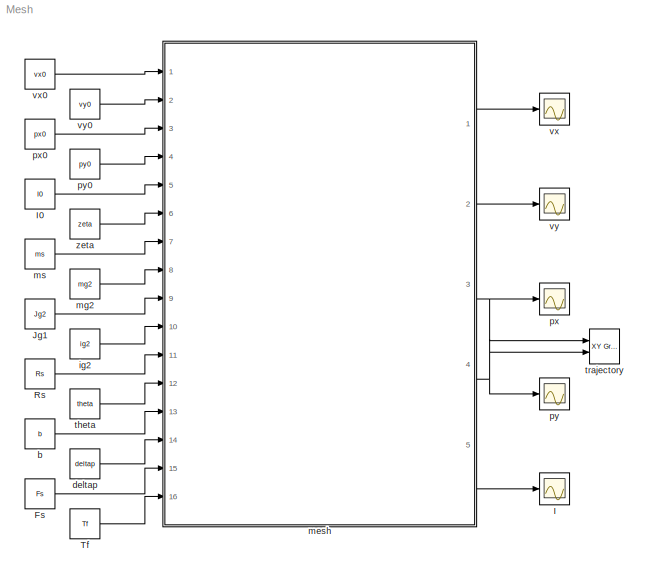
MODEL Mesh
KIND model
CONFIG PreLoadFcn = \n
BLOCK [Constant] Fs
  SID = 155
  Value = Fs
BLOCK [Scope] I
  DataFormat = StructureWithTime
  Floating = off
  LimitDataPoints = off
  NumInputPorts = 1
  Ports = [1]
  SID = 201
  SampleTime = 0
  SaveName = ScopeData4
  ShowLegends = off
  ZoomMode = yonly
BLOCK [Constant] I0
  SID = 188
  Value = I0
BLOCK [Constant] Jg1
  SID = 167
  Value = Jg2
BLOCK [Constant] Rs
  SID = 169
  Value = Rs
BLOCK [Constant] Tf
  SID = 162
  Value = Tf
BLOCK [Constant] b
  SID = 171
  Value = b
BLOCK [Constant] deltap
  SID = 172
  Value = deltap
BLOCK [Constant] ig2
  SID = 168
  Value = ig2
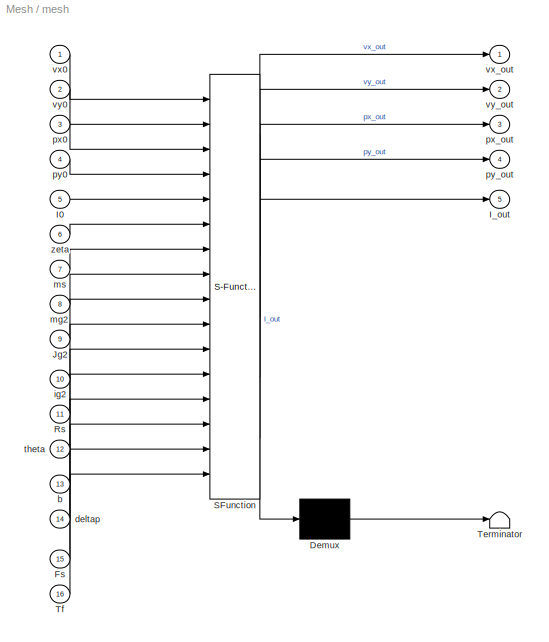
BLOCK [SubSystem] mesh
  ErrorFcn = Stateflow.Translate.translate
  FunctionWithSeparateData = off
  MaskDescription = Stateflow diagram
  MaskDisplay = plot(sf('Private','sfblk','xIcon'),sf('Private','sfblk','yIcon'));text(0.5,0,sf('Private', 'sfblk', 'tIcon'),'HorizontalAl','Center','VerticalAl','Bottom');
  MaskHideContents = off
  MaskIconFrame = off
  MaskIconOpaque = off
  MaskIconRotate = none
  MaskIconUnits = normalized
  MaskPortRotate = default
  MaskSelfModifiable = on
  MaskType = Stateflow
  MinAlgLoopOccurrences = off
  Opaque = off
  PermitHierarchicalResolution = ExplicitOnly
  Ports = [16, 5]
  PropExecContextOutsideSubsystem = off
  RTWSystemCode = Auto
  RequestExecContextInheritance = off
  SFBlockType = Chart
  SID = 176
  TreatAsAtomicUnit = on
BLOCK [Demux] mesh/ Demux 
  Outputs = 1
  Ports = [1, 1]
  SID = 176::26
BLOCK [S-Function] mesh/ SFunction 
  EnableBusSupport = on
  FunctionName = sf_sfun
  PortCounts = [16 6]
  Ports = [16, 6]
  SID = 176::25
  Tag = Stateflow S-Function Mesh 1
BLOCK [Terminator] mesh/ Terminator 
  SID = 176::28
BLOCK [Inport] mesh/Fs
  IconDisplay = Port number
  Port = 15
  SID = 176::41
BLOCK [Inport] mesh/I0
  IconDisplay = Port number
  Port = 5
  SID = 176::68
BLOCK [Outport] mesh/I_out
  IconDisplay = Port number
  Port = 5
  SID = 176::63
BLOCK [Inport] mesh/Jg2
  IconDisplay = Port number
  Port = 9
  SID = 176::37
BLOCK [Inport] mesh/Rs
  IconDisplay = Port number
  Port = 11
  SID = 176::38
BLOCK [Inport] mesh/Tf
  IconDisplay = Port number
  Port = 16
  SID = 176::42
BLOCK [Inport] mesh/b
  IconDisplay = Port number
  Port = 13
  SID = 176::40
BLOCK [Inport] mesh/deltap
  IconDisplay = Port number
  Port = 14
  SID = 176::48
BLOCK [Inport] mesh/ig2
  IconDisplay = Port number
  Port = 10
  SID = 176::70
BLOCK [Inport] mesh/mg2
  IconDisplay = Port number
  Port = 8
  SID = 176::36
BLOCK [Inport] mesh/ms
  IconDisplay = Port number
  Port = 7
  SID = 176::35
BLOCK [Inport] mesh/px0
  IconDisplay = Port number
  Port = 3
  SID = 176::31
BLOCK [Outport] mesh/px_out
  IconDisplay = Port number
  Port = 3
  SID = 176::29
BLOCK [Inport] mesh/py0
  IconDisplay = Port number
  Port = 4
  SID = 176::32
BLOCK [Outport] mesh/py_out
  IconDisplay = Port number
  Port = 4
  SID = 176::30
BLOCK [Inport] mesh/theta
  IconDisplay = Port number
  Port = 12
  SID = 176::39
BLOCK [Inport] mesh/vx0
  IconDisplay = Port number
  SID = 176::33
BLOCK [Outport] mesh/vx_out
  IconDisplay = Port number
  SID = 176::50
BLOCK [Inport] mesh/vy0
  IconDisplay = Port number
  Port = 2
  SID = 176::34
BLOCK [Outport] mesh/vy_out
  IconDisplay = Port number
  Port = 2
  SID = 176::51
BLOCK [Inport] mesh/zeta
  IconDisplay = Port number
  Port = 6
  SID = 176::43
BLOCK [Constant] mg2
  SID = 165
  Value = mg2
BLOCK [Constant] ms
  SID = 164
  Value = ms
BLOCK [Scope] px
  DataFormat = StructureWithTime
  Floating = off
  LimitDataPoints = off
  NumInputPorts = 1
  Ports = [1]
  SID = 199
  SampleTime = 0
  SaveName = ScopeData2
  ShowLegends = off
  TimeRange = 1
  YMax = 12
  YMin = -2
  ZoomMode = yonly
BLOCK [Constant] px0
  SID = 183
  Value = px0
BLOCK [Scope] py
  DataFormat = StructureWithTime
  Floating = off
  LimitDataPoints = off
  NumInputPorts = 1
  Ports = [1]
  SID = 200
  SampleTime = 0
  SaveName = ScopeData3
  ShowLegends = off
BLOCK [Constant] py0
  SID = 184
  Value = py0
BLOCK [Constant] theta
  SID = 170
  Value = theta
BLOCK [Reference] trajectory  REF=simulink/Sinks/XY Graph
  Ports = [2]
  SID = 216
  SourceBlock = simulink/Sinks/XY Graph
  SourceType = XY scope.
  st = -1
  xmax = 0
  xmin = -0.02
  ymax = 0.015
  ymin = -0.015
BLOCK [Scope] vx
  DataFormat = StructureWithTime
  Floating = off
  LimitDataPoints = off
  NumInputPorts = 1
  Ports = [1]
  SID = 197
  SampleTime = 0
  ShowLegends = off
BLOCK [Constant] vx0
  SID = 180
  Value = vx0
BLOCK [Scope] vy
  DataFormat = StructureWithTime
  Floating = off
  LimitDataPoints = off
  NumInputPorts = 1
  Ports = [1]
  SID = 198
  SampleTime = 0
  SaveName = ScopeData1
  ShowLegends = off
BLOCK [Constant] vy0
  SID = 181
  Value = vy0
BLOCK [Constant] zeta
  SID = 163
  Value = zeta
LINE Fs:1 -> mesh:15
LINE I0:1 -> mesh:5
LINE Jg1:1 -> mesh:9
LINE Rs:1 -> mesh:11
LINE Tf:1 -> mesh:16
LINE b:1 -> mesh:13
LINE deltap:1 -> mesh:14
LINE ig2:1 -> mesh:10
LINE mesh/ Demux :1 -> mesh/ Terminator :1
LINE mesh/ SFunction :1 -> mesh/ Demux :1
LINE mesh/ SFunction :2 -> mesh/vx_out:1
LINE mesh/ SFunction :3 -> mesh/vy_out:1
LINE mesh/ SFunction :4 -> mesh/px_out:1
LINE mesh/ SFunction :5 -> mesh/py_out:1
LINE mesh/ SFunction :6 -> mesh/I_out:1
LINE mesh/Fs:1 -> mesh/ SFunction :15
LINE mesh/I0:1 -> mesh/ SFunction :5
LINE mesh/Jg2:1 -> mesh/ SFunction :9
LINE mesh/Rs:1 -> mesh/ SFunction :11
LINE mesh/Tf:1 -> mesh/ SFunction :16
LINE mesh/b:1 -> mesh/ SFunction :13
LINE mesh/deltap:1 -> mesh/ SFunction :14
LINE mesh/ig2:1 -> mesh/ SFunction :10
LINE mesh/mg2:1 -> mesh/ SFunction :8
LINE mesh/ms:1 -> mesh/ SFunction :7
LINE mesh/px0:1 -> mesh/ SFunction :3
LINE mesh/py0:1 -> mesh/ SFunction :4
LINE mesh/theta:1 -> mesh/ SFunction :12
LINE mesh/vx0:1 -> mesh/ SFunction :1
LINE mesh/vy0:1 -> mesh/ SFunction :2
LINE mesh/zeta:1 -> mesh/ SFunction :6
LINE mesh:1 -> vx:1
LINE mesh:2 -> vy:1
NET mesh:3 -> px:1, trajectory:1
NET mesh:4 -> py:1, trajectory:2
LINE mesh:5 -> I:1
LINE mg2:1 -> mesh:8
LINE ms:1 -> mesh:7
LINE px0:1 -> mesh:3
LINE py0:1 -> mesh:4
LINE theta:1 -> mesh:12
LINE vx0:1 -> mesh:1
LINE vy0:1 -> mesh:2
LINE zeta:1 -> mesh:6
note: NET lines group one-source signal fan-out (src -> all destinations, sorted); 1:1 wires keep LINE
CHART mesh states=2 transitions=4
  STATE_LABEL 'move_free\\ndu:\\nvx_dot=Fs/ms;\\nvy_dot=-Rs*Tf/Jg2;\\npx_dot=vx;\\npy_dot=vy;\\nI_dot=0;\\nvx_out=vx;\\nvy_out=vy;\\npx_out=px;\\npy_out=py;\\nI_out=I;'
  STATE_LABEL 'meshed\\ndu:\\nvx_dot=0;\\nvy_dot=0;\\npx_dot=vx;\\npy_dot=vy;\\nI_dot=0;\\nvx_out=vx;\\nvy_out=vy;\\npx_out=px;\\npy_out=py;\\nI_out=I;'
